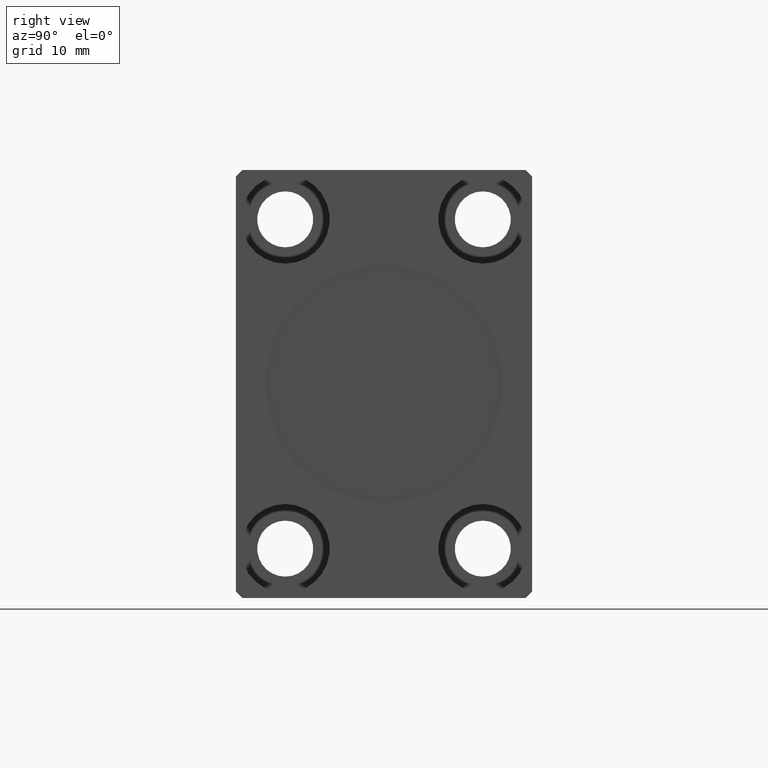
[diagram: clean part render]
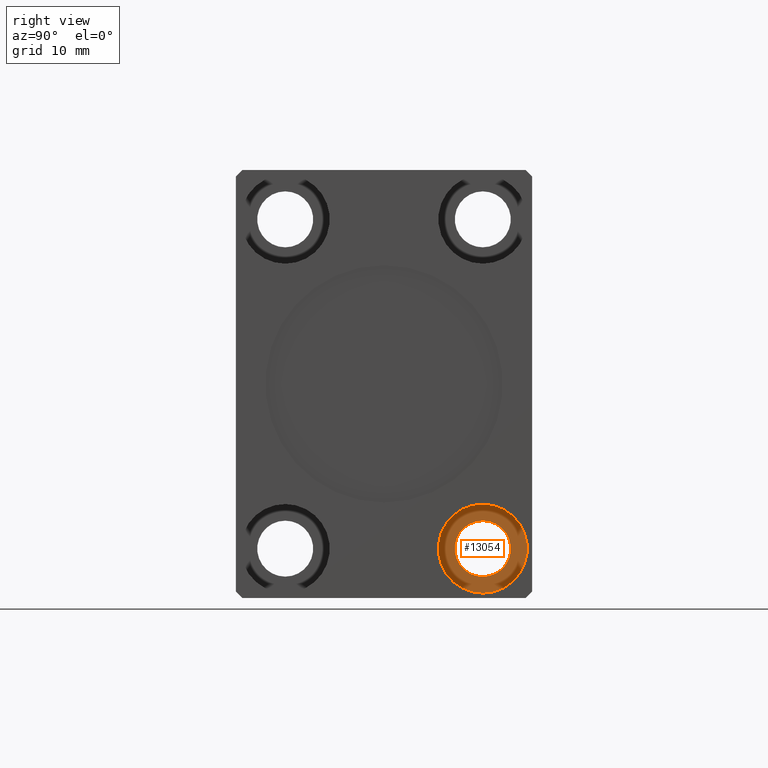
[diagram: same view with one face highlighted and labeled with its STEP entity id]
A machine part, right view. The second image highlights one B-rep face of the part: STEP entity #13054.
In plain terms, the highlighted planar face has unit normal (1, 0, -0).
Its self-contained STEP definition (entity closure, byte-faithful):
#394 = DIRECTION ( 'NONE',  ( 0.000000000000000000, 0.000000000000000000, 1.000000000000000000 ) ) ;
#720 = CARTESIAN_POINT ( 'NONE',  ( 67.66999999999998749, 15.00000000000000000, -18.25000000000001066 ) ) ;
#1967 = CARTESIAN_POINT ( 'NONE',  ( 67.66999999999998749, 15.00000000000000000, -25.00000000000000000 ) ) ;
#1975 = CARTESIAN_POINT ( 'NONE',  ( 67.66999999999998749, 15.00000000000000000, -25.00000000000000000 ) ) ;
#2185 = DIRECTION ( 'NONE',  ( 1.000000000000000000, 0.000000000000000000, -0.000000000000000000 ) ) ;
#2406 = DIRECTION ( 'NONE',  ( 0.000000000000000000, 0.000000000000000000, -1.000000000000000000 ) ) ;
#3500 = DIRECTION ( 'NONE',  ( 0.000000000000000000, 0.000000000000000000, 1.000000000000000000 ) ) ;
#5134 = AXIS2_PLACEMENT_3D ( 'NONE', #32691, #26045, #6714 ) ;
#6714 = DIRECTION ( 'NONE',  ( 0.000000000000000000, 0.000000000000000000, -1.000000000000000000 ) ) ;
#7903 = CARTESIAN_POINT ( 'NONE',  ( 67.66999999999998749, 15.00000000000000000, -31.74999999999999289 ) ) ;
#9436 = EDGE_CURVE ( 'NONE', #16030, #31252, #28461, .T. ) ;
#9632 = CIRCLE ( 'NONE', #15138, 6.749999999999992006 ) ;
#11162 = EDGE_LOOP ( 'NONE', ( #17703, #33775 ) ) ;
#11410 = FACE_OUTER_BOUND ( 'NONE', #12790, .T. ) ;
#12790 = EDGE_LOOP ( 'NONE', ( #25973, #34906 ) ) ;
#12946 = CARTESIAN_POINT ( 'NONE',  ( 67.66999999999998749, 15.00000000000000000, -29.25000000000000000 ) ) ;
#13054 = ADVANCED_FACE ( 'NONE', ( #28161, #11410 ), #28377, .T. ) ;
#13494 = CARTESIAN_POINT ( 'NONE',  ( 67.66999999999998749, 15.00000000000000000, -25.00000000000000000 ) ) ;
#15138 = AXIS2_PLACEMENT_3D ( 'NONE', #13494, #29381, #394 ) ;
#16030 = VERTEX_POINT ( 'NONE', #20508 ) ;
#16582 = AXIS2_PLACEMENT_3D ( 'NONE', #1975, #29371, #2406 ) ;
#16992 = VERTEX_POINT ( 'NONE', #720 ) ;
#17703 = ORIENTED_EDGE ( 'NONE', *, *, #9436, .F. ) ;
#17940 = CIRCLE ( 'NONE', #16582, 4.249999999999996447 ) ;
#18929 = AXIS2_PLACEMENT_3D ( 'NONE', #1967, #2185, #24505 ) ;
#20508 = CARTESIAN_POINT ( 'NONE',  ( 67.66999999999998749, 15.00000000000000000, -20.75000000000000355 ) ) ;
#24505 = DIRECTION ( 'NONE',  ( 0.000000000000000000, 0.000000000000000000, 1.000000000000000000 ) ) ;
#25421 = AXIS2_PLACEMENT_3D ( 'NONE', #36760, #26895, #3500 ) ;
#25973 = ORIENTED_EDGE ( 'NONE', *, *, #36799, .F. ) ;
#26045 = DIRECTION ( 'NONE',  ( 1.000000000000000000, 0.000000000000000000, 0.000000000000000000 ) ) ;
#26895 = DIRECTION ( 'NONE',  ( -1.000000000000000000, -0.000000000000000000, -0.000000000000000000 ) ) ;
#28161 = FACE_BOUND ( 'NONE', #11162, .T. ) ;
#28377 = PLANE ( 'NONE',  #18929 ) ;
#28461 = CIRCLE ( 'NONE', #5134, 4.249999999999996447 ) ;
#29371 = DIRECTION ( 'NONE',  ( 1.000000000000000000, 0.000000000000000000, 0.000000000000000000 ) ) ;
#29381 = DIRECTION ( 'NONE',  ( -1.000000000000000000, -0.000000000000000000, -0.000000000000000000 ) ) ;
#31252 = VERTEX_POINT ( 'NONE', #12946 ) ;
#32691 = CARTESIAN_POINT ( 'NONE',  ( 67.66999999999998749, 15.00000000000000000, -25.00000000000000000 ) ) ;
#32983 = EDGE_CURVE ( 'NONE', #16992, #36255, #40513, .T. ) ;
#33775 = ORIENTED_EDGE ( 'NONE', *, *, #40348, .F. ) ;
#34906 = ORIENTED_EDGE ( 'NONE', *, *, #32983, .F. ) ;
#36255 = VERTEX_POINT ( 'NONE', #7903 ) ;
#36760 = CARTESIAN_POINT ( 'NONE',  ( 67.66999999999998749, 15.00000000000000000, -25.00000000000000000 ) ) ;
#36799 = EDGE_CURVE ( 'NONE', #36255, #16992, #9632, .T. ) ;
#40348 = EDGE_CURVE ( 'NONE', #31252, #16030, #17940, .T. ) ;
#40513 = CIRCLE ( 'NONE', #25421, 6.749999999999992006 ) ;